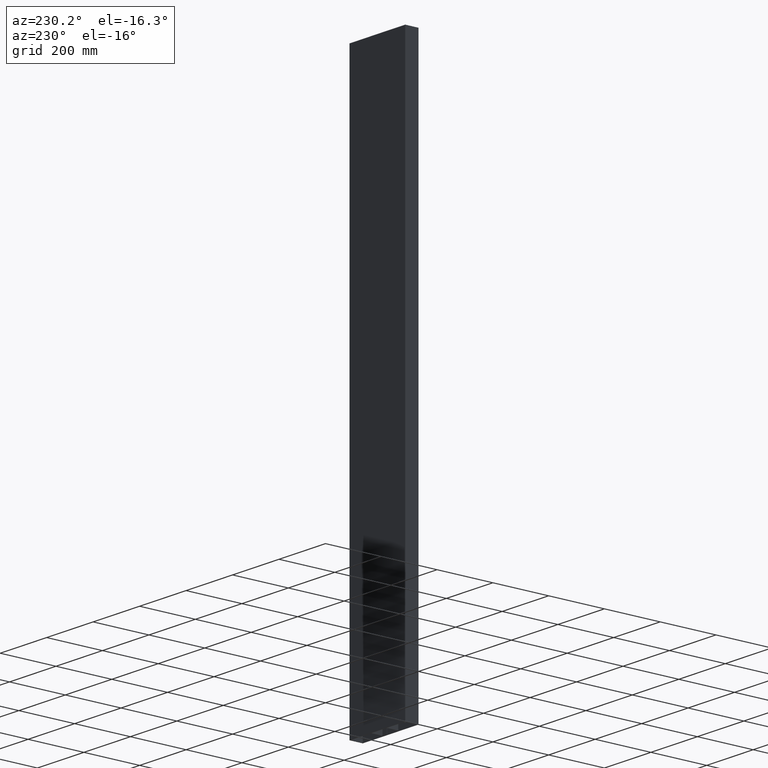
[diagram: clean part render]
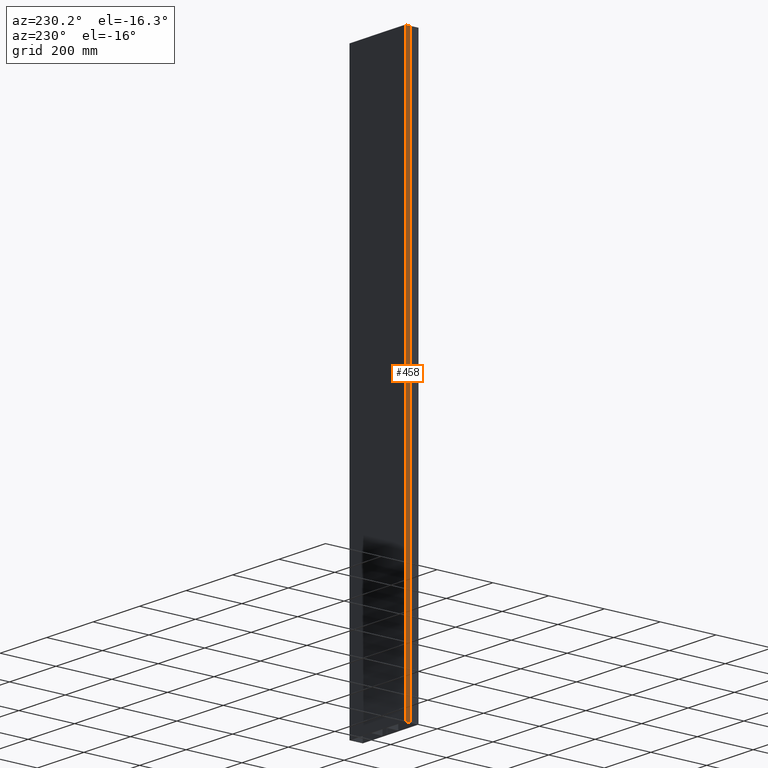
[diagram: same view with one face highlighted and labeled with its STEP entity id]
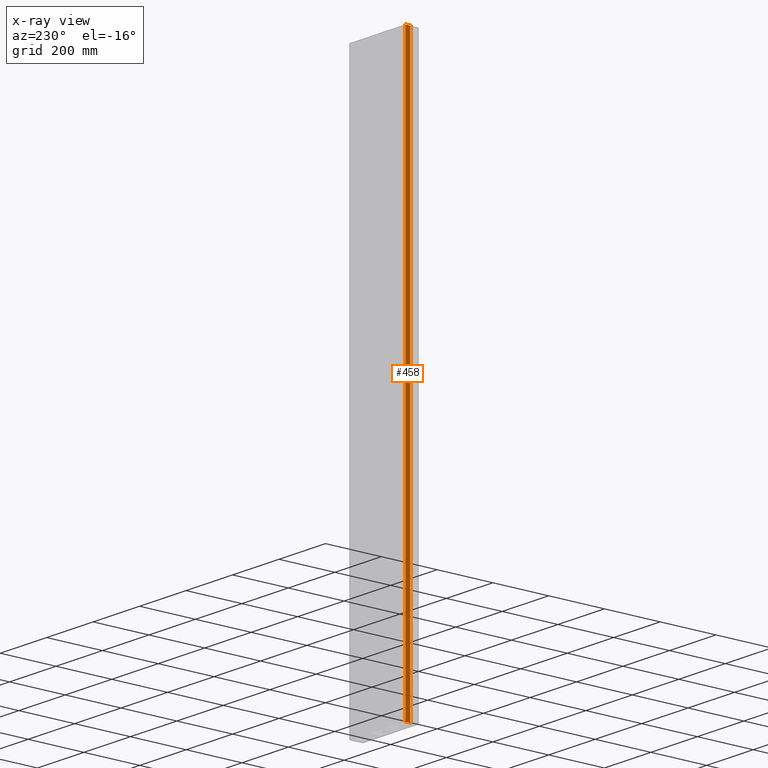
[diagram: x-ray of the same camera — body ghosted, the highlighted face saturated]
A machine part, auxiliary view. The second image highlights one B-rep face of the part: STEP entity #458.
The next image is the same camera in x-ray: the body ghosted, the highlighted face saturated — about 0% of this face is hidden behind the body in this view.
In plain terms, the highlighted planar face has unit normal (-1, 0, 0).
Its self-contained STEP definition (entity closure, byte-faithful):
#288=DIRECTION('',(0.E0,-1.E0,0.E0));
#289=VECTOR('',#288,1.785E1);
#290=CARTESIAN_POINT('',(-1.2E2,4.77528E1,0.E0));
#291=LINE('',#290,#289);
#304=DIRECTION('',(0.E0,0.E0,-1.E0));
#305=VECTOR('',#304,2.E3);
#306=CARTESIAN_POINT('',(-1.2E2,4.77528E1,0.E0));
#307=LINE('',#306,#305);
#308=DIRECTION('',(0.E0,0.E0,-1.E0));
#309=VECTOR('',#308,2.E3);
#310=CARTESIAN_POINT('',(-1.2E2,2.99028E1,0.E0));
#311=LINE('',#310,#309);
#336=DIRECTION('',(0.E0,-1.E0,0.E0));
#337=VECTOR('',#336,1.785E1);
#338=CARTESIAN_POINT('',(-1.2E2,4.77528E1,-2.E3));
#339=LINE('',#338,#337);
#364=CARTESIAN_POINT('',(-1.2E2,4.77528E1,0.E0));
#365=VERTEX_POINT('',#364);
#376=CARTESIAN_POINT('',(-1.2E2,4.77528E1,-2.E3));
#377=VERTEX_POINT('',#376);
#384=CARTESIAN_POINT('',(-1.2E2,2.99028E1,0.E0));
#385=VERTEX_POINT('',#384);
#388=CARTESIAN_POINT('',(-1.2E2,2.99028E1,-2.E3));
#389=VERTEX_POINT('',#388);
#445=CARTESIAN_POINT('',(-1.2E2,4.77528E1,0.E0));
#446=DIRECTION('',(-1.E0,0.E0,0.E0));
#447=DIRECTION('',(0.E0,-1.E0,0.E0));
#448=AXIS2_PLACEMENT_3D('',#445,#446,#447);
#449=PLANE('',#448);
#450=ORIENTED_EDGE('',*,*,#409,.T.);
#452=ORIENTED_EDGE('',*,*,#451,.T.);
#454=ORIENTED_EDGE('',*,*,#453,.F.);
#455=ORIENTED_EDGE('',*,*,#437,.F.);
#456=EDGE_LOOP('',(#450,#452,#454,#455));
#457=FACE_OUTER_BOUND('',#456,.F.);
#409=EDGE_CURVE('',#365,#385,#291,.T.);
#437=EDGE_CURVE('',#365,#377,#307,.T.);
#451=EDGE_CURVE('',#385,#389,#311,.T.);
#453=EDGE_CURVE('',#377,#389,#339,.T.);
#458=ADVANCED_FACE('',(#457),#449,.T.);